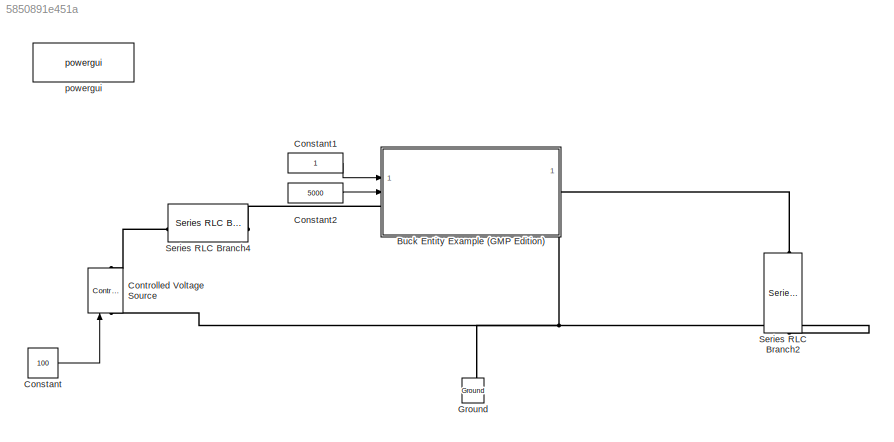
MODEL slx_5850891e451a
KIND model
CONFIG AbsTol = auto
CONFIG EnableMultiTasking = off
CONFIG FixedStep = Ts
CONFIG InitFcn = buck_init
CONFIG MaxStep = auto
CONFIG MinStep = auto
CONFIG RelTol = 1e-3
CONFIG SampleTimeConstraint = Unconstrained
CONFIG SolverName = ode4
CONFIG StartTime = 0.0
CONFIG StopTime = 0.005
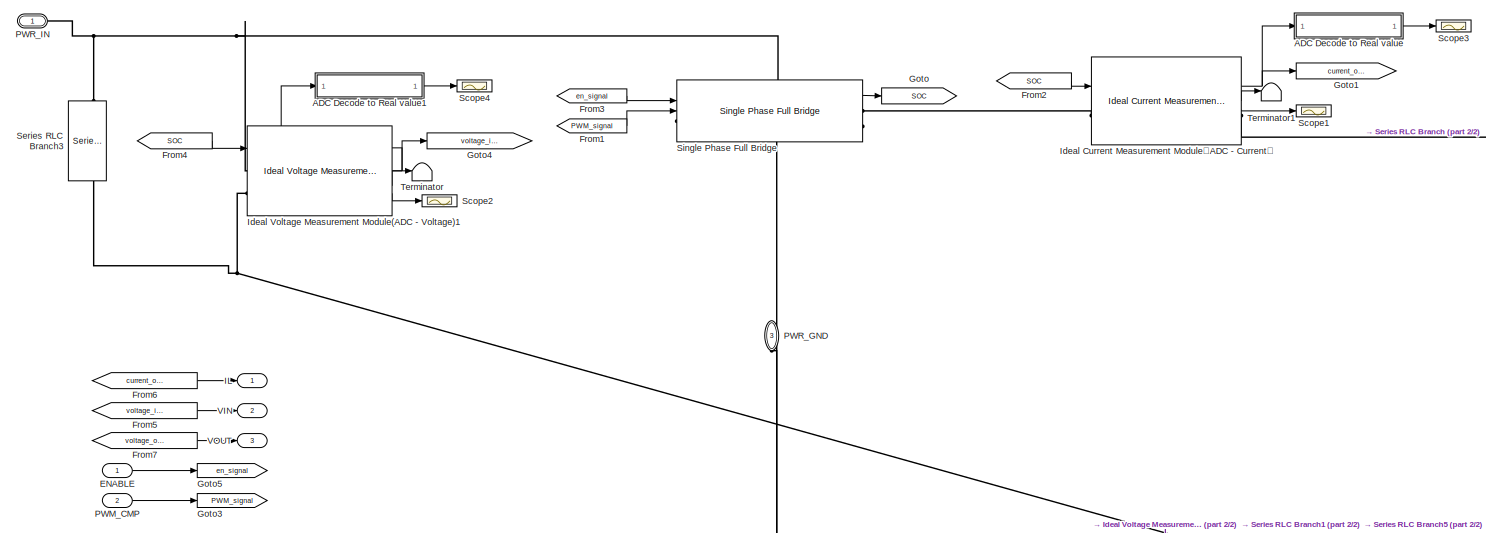
[diagram: Buck Entity Example (GMP Edition) - part 1/2, top left region]
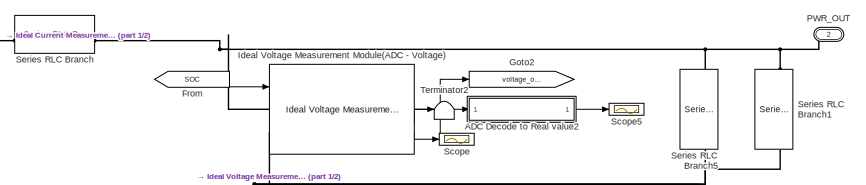
[diagram: Buck Entity Example (GMP Edition) - part 2/2, top right region]
BLOCK [SubSystem] Buck Entity Example (GMP Edition)
  PortSchema = {"entries":[{"content":{"sides":[{"content":{"connectorIds":["In1","In2","LConn1"]},"type":"ConnectorPlacement.EquallySpacedRectSide","uuid":"3dc1f0aa-256b-4eee-9ab4-ff52cb056450"},{"content":{"connectorIds":["Out1","Out2","Out3","RConn1"],"side":"RIGHT"},"type":"ConnectorPlacement.EquallySpacedRectSide","uuid":"c182f68c-961e-48e9-b450-8a2d07cca989"},{"content":{"connectorIds":[],"side":"TOP"},"ty...<+430ch>
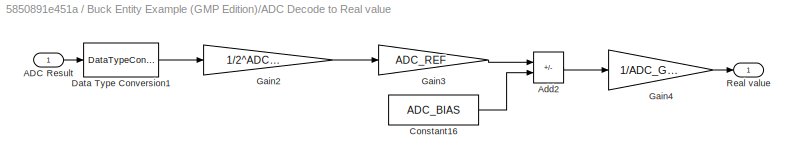
BLOCK [SubSystem] Buck Entity Example (GMP Edition)/ADC Decode to Real value
  CopyFcn = set_param(gcbh,'LinkStatus','none');
BLOCK [Inport] Buck Entity Example (GMP Edition)/ADC Decode to Real value/ADC Result
BLOCK [Sum] Buck Entity Example (GMP Edition)/ADC Decode to Real value/Add2
  IconShape = rectangular
  Inputs = +-
BLOCK [Constant] Buck Entity Example (GMP Edition)/ADC Decode to Real value/Constant16
  Value = ADC_BIAS
BLOCK [DataTypeConversion] Buck Entity Example (GMP Edition)/ADC Decode to Real value/Data Type Conversion1
  OutDataTypeStr = double
  RndMeth = Floor
  SaturateOnIntegerOverflow = off
BLOCK [Gain] Buck Entity Example (GMP Edition)/ADC Decode to Real value/Gain2
  Gain = 1/2^ADC_BIT
BLOCK [Gain] Buck Entity Example (GMP Edition)/ADC Decode to Real value/Gain3
  Gain = ADC_REF
BLOCK [Gain] Buck Entity Example (GMP Edition)/ADC Decode to Real value/Gain4
  Gain = 1/ADC_GAIN
BLOCK [Outport] Buck Entity Example (GMP Edition)/ADC Decode to Real value/Real value
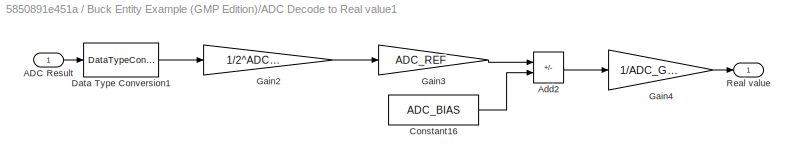
BLOCK [SubSystem] Buck Entity Example (GMP Edition)/ADC Decode to Real value1
  CopyFcn = set_param(gcbh,'LinkStatus','none');
BLOCK [Inport] Buck Entity Example (GMP Edition)/ADC Decode to Real value1/ADC Result
BLOCK [Sum] Buck Entity Example (GMP Edition)/ADC Decode to Real value1/Add2
  IconShape = rectangular
  Inputs = +-
BLOCK [Constant] Buck Entity Example (GMP Edition)/ADC Decode to Real value1/Constant16
  Value = ADC_BIAS
BLOCK [DataTypeConversion] Buck Entity Example (GMP Edition)/ADC Decode to Real value1/Data Type Conversion1
  OutDataTypeStr = double
  RndMeth = Floor
  SaturateOnIntegerOverflow = off
BLOCK [Gain] Buck Entity Example (GMP Edition)/ADC Decode to Real value1/Gain2
  Gain = 1/2^ADC_BIT
BLOCK [Gain] Buck Entity Example (GMP Edition)/ADC Decode to Real value1/Gain3
  Gain = ADC_REF
BLOCK [Gain] Buck Entity Example (GMP Edition)/ADC Decode to Real value1/Gain4
  Gain = 1/ADC_GAIN
BLOCK [Outport] Buck Entity Example (GMP Edition)/ADC Decode to Real value1/Real value
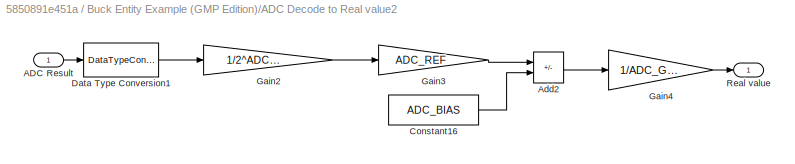
BLOCK [SubSystem] Buck Entity Example (GMP Edition)/ADC Decode to Real value2
  CopyFcn = set_param(gcbh,'LinkStatus','none');
BLOCK [Inport] Buck Entity Example (GMP Edition)/ADC Decode to Real value2/ADC Result
BLOCK [Sum] Buck Entity Example (GMP Edition)/ADC Decode to Real value2/Add2
  IconShape = rectangular
  Inputs = +-
BLOCK [Constant] Buck Entity Example (GMP Edition)/ADC Decode to Real value2/Constant16
  Value = ADC_BIAS
BLOCK [DataTypeConversion] Buck Entity Example (GMP Edition)/ADC Decode to Real value2/Data Type Conversion1
  OutDataTypeStr = double
  RndMeth = Floor
  SaturateOnIntegerOverflow = off
BLOCK [Gain] Buck Entity Example (GMP Edition)/ADC Decode to Real value2/Gain2
  Gain = 1/2^ADC_BIT
BLOCK [Gain] Buck Entity Example (GMP Edition)/ADC Decode to Real value2/Gain3
  Gain = ADC_REF
BLOCK [Gain] Buck Entity Example (GMP Edition)/ADC Decode to Real value2/Gain4
  Gain = 1/ADC_GAIN
BLOCK [Outport] Buck Entity Example (GMP Edition)/ADC Decode to Real value2/Real value
BLOCK [Inport] Buck Entity Example (GMP Edition)/ENABLE
BLOCK [From] Buck Entity Example (GMP Edition)/From
  GotoTag = SOC
BLOCK [From] Buck Entity Example (GMP Edition)/From1
  GotoTag = PWM_signal
BLOCK [From] Buck Entity Example (GMP Edition)/From2
  GotoTag = SOC
BLOCK [From] Buck Entity Example (GMP Edition)/From3
  GotoTag = en_signal
BLOCK [From] Buck Entity Example (GMP Edition)/From4
  GotoTag = SOC
BLOCK [From] Buck Entity Example (GMP Edition)/From5
  GotoTag = voltage_input
BLOCK [From] Buck Entity Example (GMP Edition)/From6
  GotoTag = current_output
BLOCK [From] Buck Entity Example (GMP Edition)/From7
  GotoTag = voltage_output
BLOCK [Goto] Buck Entity Example (GMP Edition)/Goto
  GotoTag = SOC
BLOCK [Goto] Buck Entity Example (GMP Edition)/Goto1
  GotoTag = current_output
BLOCK [Goto] Buck Entity Example (GMP Edition)/Goto2
  GotoTag = voltage_output
BLOCK [Goto] Buck Entity Example (GMP Edition)/Goto3
  GotoTag = PWM_signal
BLOCK [Goto] Buck Entity Example (GMP Edition)/Goto4
  GotoTag = voltage_input
BLOCK [Goto] Buck Entity Example (GMP Edition)/Goto5
  GotoTag = en_signal
BLOCK [Outport] Buck Entity Example (GMP Edition)/IL
BLOCK [Reference] Buck Entity Example (GMP Edition)/Ideal Current Measurement Module（ADC - Current）  REF=peripheral_utilities/Ideal Current Measurement Module（ADC - Current）
  SourceBlock = peripheral_utilities/Ideal Current Measurement Module（ADC - Current）
  SourceProductName = GMP Utilities Library
BLOCK [Reference] Buck Entity Example (GMP Edition)/Ideal Voltage Measurement Module(ADC - Voltage)  REF=peripheral_utilities/Ideal Voltage Measurement Module(ADC - Voltage)
  SourceBlock = peripheral_utilities/Ideal Voltage Measurement Module(ADC - Voltage)
  SourceProductName = GMP Utilities Library
BLOCK [Reference] Buck Entity Example (GMP Edition)/Ideal Voltage Measurement Module(ADC - Voltage)1  REF=peripheral_utilities/Ideal Voltage Measurement Module(ADC - Voltage)
  SourceBlock = peripheral_utilities/Ideal Voltage Measurement Module(ADC - Voltage)
  SourceProductName = GMP Utilities Library
BLOCK [Inport] Buck Entity Example (GMP Edition)/PWM_CMP
  Port = 2
BLOCK [PMIOPort] Buck Entity Example (GMP Edition)/PWR_GND
  NameLocation = right
  Port = 3
  Side = Right
BLOCK [PMIOPort] Buck Entity Example (GMP Edition)/PWR_IN
  Side = Left
BLOCK [PMIOPort] Buck Entity Example (GMP Edition)/PWR_OUT
  NameLocation = top
  Port = 2
  Side = Right
BLOCK [Scope] Buck Entity Example (GMP Edition)/Scope
  Floating = off
  NumInputPorts = 1
  ScopeSpecificationString = Simulink.scopes.TimeScopeBlockCfg('CurrentConfiguration', extmgr.ConfigurationSet(extmgr.Configuration('Core','General UI',true),extmgr.Configuration('Core','Source UI',true),extmgr.Configuration('Sources','WiredSimulink',true),extmgr.Configuration('Visuals','Time Domain',true,'SerializedDisplays',{struct('MinYLimReal','-11.14363','MaxYLimReal','100.29271','YLabelReal','','MinYLimMag','0.00000','M...<+1463ch>
BLOCK [Scope] Buck Entity Example (GMP Edition)/Scope1
  Floating = off
  NumInputPorts = 1
  ScopeSpecificationString = Simulink.scopes.TimeScopeBlockCfg('CurrentConfiguration', extmgr.ConfigurationSet(extmgr.Configuration('Core','General UI',true),extmgr.Configuration('Core','Source UI',true),extmgr.Configuration('Sources','WiredSimulink',true,'DataLoggingVariableName','ScopeData1'),extmgr.Configuration('Visuals','Time Domain',true,'SerializedDisplays',{struct('MinYLimReal','-71.77857','MaxYLimReal','112.69634','Y...<+1474ch>
BLOCK [Scope] Buck Entity Example (GMP Edition)/Scope2
  Floating = off
  NumInputPorts = 1
  ScopeSpecificationString = Simulink.scopes.TimeScopeBlockCfg('CurrentConfiguration', extmgr.ConfigurationSet(extmgr.Configuration('Core','General UI',true),extmgr.Configuration('Core','Source UI',true),extmgr.Configuration('Sources','WiredSimulink',true,'DataLoggingVariableName','ScopeData2'),extmgr.Configuration('Visuals','Time Domain',true,'SerializedDisplays',{struct('MinYLimReal','-20.25043','MaxYLimReal','182.2539','YL...<+1500ch>
BLOCK [Scope] Buck Entity Example (GMP Edition)/Scope3
  Floating = off
  NumInputPorts = 1
  ScopeSpecificationString = Simulink.scopes.TimeScopeBlockCfg('CurrentConfiguration', extmgr.ConfigurationSet(extmgr.Configuration('Core','General UI',true),extmgr.Configuration('Core','Source UI',true),extmgr.Configuration('Sources','WiredSimulink',true,'DataLoggingVariableName','ScopeData3'),extmgr.Configuration('Visuals','Time Domain',true,'SerializedDisplays',{struct('MinYLimReal','-37.5','MaxYLimReal','37.5','YLabelReal...<+1395ch>
BLOCK [Scope] Buck Entity Example (GMP Edition)/Scope4
  Floating = off
  NumInputPorts = 1
  ScopeSpecificationString = Simulink.scopes.TimeScopeBlockCfg('CurrentConfiguration', extmgr.ConfigurationSet(extmgr.Configuration('Core','General UI',true),extmgr.Configuration('Core','Source UI',true),extmgr.Configuration('Sources','WiredSimulink',true,'DataLoggingVariableName','ScopeData4'),extmgr.Configuration('Visuals','Time Domain',true,'SerializedDisplays',{struct('MinYLimReal','-15.00000','MaxYLimReal','135.00000','Y...<+1394ch>
BLOCK [Scope] Buck Entity Example (GMP Edition)/Scope5
  Floating = off
  NumInputPorts = 1
  ScopeSpecificationString = Simulink.scopes.TimeScopeBlockCfg('CurrentConfiguration', extmgr.ConfigurationSet(extmgr.Configuration('Core','General UI',true),extmgr.Configuration('Core','Source UI',true),extmgr.Configuration('Sources','WiredSimulink',true,'DataLoggingVariableName','ScopeData5'),extmgr.Configuration('Visuals','Time Domain',true,'SerializedDisplays',{struct('MinYLimReal','-11.11702','MaxYLimReal','100.05318','Y...<+1394ch>
BLOCK [Reference] Buck Entity Example (GMP Edition)/Series RLC Branch  REF=spsSeriesRLCBranchLib/Series RLC Branch
  LibrarySourceBlock = sps_lib/Passives/Series RLC Branch
  SourceBlock = spsSeriesRLCBranchLib/Series RLC Branch
  SourceType = Series RLC Branch
BLOCK [Reference] Buck Entity Example (GMP Edition)/Series RLC Branch1  REF=spsSeriesRLCBranchLib/Series RLC Branch
  LibrarySourceBlock = sps_lib/Passives/Series RLC Branch
  NameLocation = left
  SourceBlock = spsSeriesRLCBranchLib/Series RLC Branch
  SourceType = Series RLC Branch
BLOCK [Reference] Buck Entity Example (GMP Edition)/Series RLC Branch3  REF=spsSeriesRLCBranchLib/Series RLC Branch
  LibrarySourceBlock = sps_lib/Passives/Series RLC Branch
  NameLocation = left
  SourceBlock = spsSeriesRLCBranchLib/Series RLC Branch
  SourceType = Series RLC Branch
BLOCK [Reference] Buck Entity Example (GMP Edition)/Series RLC Branch5  REF=spsSeriesRLCBranchLib/Series RLC Branch
  LibrarySourceBlock = sps_lib/Passives/Series RLC Branch
  NameLocation = left
  SourceBlock = spsSeriesRLCBranchLib/Series RLC Branch
  SourceType = Series RLC Branch
BLOCK [Reference] Buck Entity Example (GMP Edition)/Single Phase Full Bridge  REF=peripheral_utilities/Single Phase Full Bridge
  SourceBlock = peripheral_utilities/Single Phase Full Bridge
  SourceProductName = GMP Utilities Library
BLOCK [Terminator] Buck Entity Example (GMP Edition)/Terminator
BLOCK [Terminator] Buck Entity Example (GMP Edition)/Terminator1
BLOCK [Terminator] Buck Entity Example (GMP Edition)/Terminator2
BLOCK [Outport] Buck Entity Example (GMP Edition)/VIN
  Port = 2
BLOCK [Outport] Buck Entity Example (GMP Edition)/VOUT
  Port = 3
BLOCK [Constant] Constant
  Value = 100
BLOCK [Constant] Constant1
BLOCK [Constant] Constant2
  Value = 5000
BLOCK [Reference] Controlled Voltage Source  REF=spsControlledVoltageSourceLib/Controlled Voltage Source
  LibrarySourceBlock = sps_lib/Sources/Controlled Voltage Source
  SourceBlock = spsControlledVoltageSourceLib/Controlled Voltage Source
  SourceType = Controlled Voltage Source
BLOCK [Reference] Ground  REF=spsGroundLib/Ground
  LibrarySourceBlock = sps_lib/Utilities/Ground
  NameLocation = right
  SourceBlock = spsGroundLib/Ground
  SourceType = Ground
BLOCK [Reference] Series RLC Branch2  REF=spsSeriesRLCBranchLib/Series RLC Branch
  LibrarySourceBlock = sps_lib/Passives/Series RLC Branch
  NameLocation = left
  SourceBlock = spsSeriesRLCBranchLib/Series RLC Branch
  SourceType = Series RLC Branch
BLOCK [Reference] Series RLC Branch4  REF=spsSeriesRLCBranchLib/Series RLC Branch
  LibrarySourceBlock = sps_lib/Passives/Series RLC Branch
  SourceBlock = spsSeriesRLCBranchLib/Series RLC Branch
  SourceType = Series RLC Branch
BLOCK [Reference] powergui  REF=spspowerguiLib/powergui
  LibrarySourceBlock = sps_lib/powergui
  Priority = 1
  SourceBlock = spspowerguiLib/powergui
  SourceType = PSB option menu block
LINE Buck Entity Example (GMP Edition)/ADC Decode to Real value/ADC Result:1 -> Buck Entity Example (GMP Edition)/ADC Decode to Real value/Data Type Conversion1:1
LINE Buck Entity Example (GMP Edition)/ADC Decode to Real value/Add2:1 -> Buck Entity Example (GMP Edition)/ADC Decode to Real value/Gain4:1
LINE Buck Entity Example (GMP Edition)/ADC Decode to Real value/Constant16:1 -> Buck Entity Example (GMP Edition)/ADC Decode to Real value/Add2:2
LINE Buck Entity Example (GMP Edition)/ADC Decode to Real value/Data Type Conversion1:1 -> Buck Entity Example (GMP Edition)/ADC Decode to Real value/Gain2:1
LINE Buck Entity Example (GMP Edition)/ADC Decode to Real value/Gain2:1 -> Buck Entity Example (GMP Edition)/ADC Decode to Real value/Gain3:1
LINE Buck Entity Example (GMP Edition)/ADC Decode to Real value/Gain3:1 -> Buck Entity Example (GMP Edition)/ADC Decode to Real value/Add2:1
LINE Buck Entity Example (GMP Edition)/ADC Decode to Real value/Gain4:1 -> Buck Entity Example (GMP Edition)/ADC Decode to Real value/Real value:1
LINE Buck Entity Example (GMP Edition)/ADC Decode to Real value1/ADC Result:1 -> Buck Entity Example (GMP Edition)/ADC Decode to Real value1/Data Type Conversion1:1
LINE Buck Entity Example (GMP Edition)/ADC Decode to Real value1/Add2:1 -> Buck Entity Example (GMP Edition)/ADC Decode to Real value1/Gain4:1
LINE Buck Entity Example (GMP Edition)/ADC Decode to Real value1/Constant16:1 -> Buck Entity Example (GMP Edition)/ADC Decode to Real value1/Add2:2
LINE Buck Entity Example (GMP Edition)/ADC Decode to Real value1/Data Type Conversion1:1 -> Buck Entity Example (GMP Edition)/ADC Decode to Real value1/Gain2:1
LINE Buck Entity Example (GMP Edition)/ADC Decode to Real value1/Gain2:1 -> Buck Entity Example (GMP Edition)/ADC Decode to Real value1/Gain3:1
LINE Buck Entity Example (GMP Edition)/ADC Decode to Real value1/Gain3:1 -> Buck Entity Example (GMP Edition)/ADC Decode to Real value1/Add2:1
LINE Buck Entity Example (GMP Edition)/ADC Decode to Real value1/Gain4:1 -> Buck Entity Example (GMP Edition)/ADC Decode to Real value1/Real value:1
LINE Buck Entity Example (GMP Edition)/ADC Decode to Real value1:1 -> Buck Entity Example (GMP Edition)/Scope4:1
LINE Buck Entity Example (GMP Edition)/ADC Decode to Real value2/ADC Result:1 -> Buck Entity Example (GMP Edition)/ADC Decode to Real value2/Data Type Conversion1:1
LINE Buck Entity Example (GMP Edition)/ADC Decode to Real value2/Add2:1 -> Buck Entity Example (GMP Edition)/ADC Decode to Real value2/Gain4:1
LINE Buck Entity Example (GMP Edition)/ADC Decode to Real value2/Constant16:1 -> Buck Entity Example (GMP Edition)/ADC Decode to Real value2/Add2:2
LINE Buck Entity Example (GMP Edition)/ADC Decode to Real value2/Data Type Conversion1:1 -> Buck Entity Example (GMP Edition)/ADC Decode to Real value2/Gain2:1
LINE Buck Entity Example (GMP Edition)/ADC Decode to Real value2/Gain2:1 -> Buck Entity Example (GMP Edition)/ADC Decode to Real value2/Gain3:1
LINE Buck Entity Example (GMP Edition)/ADC Decode to Real value2/Gain3:1 -> Buck Entity Example (GMP Edition)/ADC Decode to Real value2/Add2:1
LINE Buck Entity Example (GMP Edition)/ADC Decode to Real value2/Gain4:1 -> Buck Entity Example (GMP Edition)/ADC Decode to Real value2/Real value:1
LINE Buck Entity Example (GMP Edition)/ADC Decode to Real value2:1 -> Buck Entity Example (GMP Edition)/Scope5:1
LINE Buck Entity Example (GMP Edition)/ADC Decode to Real value:1 -> Buck Entity Example (GMP Edition)/Scope3:1
LINE Buck Entity Example (GMP Edition)/ENABLE:1 -> Buck Entity Example (GMP Edition)/Goto5:1
LINE Buck Entity Example (GMP Edition)/From1:1 -> Buck Entity Example (GMP Edition)/Single Phase Full Bridge:2
LINE Buck Entity Example (GMP Edition)/From2:1 -> Buck Entity Example (GMP Edition)/Ideal Current Measurement Module（ADC - Current）:1
LINE Buck Entity Example (GMP Edition)/From3:1 -> Buck Entity Example (GMP Edition)/Single Phase Full Bridge:1
LINE Buck Entity Example (GMP Edition)/From4:1 -> Buck Entity Example (GMP Edition)/Ideal Voltage Measurement Module(ADC - Voltage)1:1
LINE Buck Entity Example (GMP Edition)/From5:1 -> Buck Entity Example (GMP Edition)/VIN:1
LINE Buck Entity Example (GMP Edition)/From6:1 -> Buck Entity Example (GMP Edition)/IL:1
LINE Buck Entity Example (GMP Edition)/From7:1 -> Buck Entity Example (GMP Edition)/VOUT:1
LINE Buck Entity Example (GMP Edition)/From:1 -> Buck Entity Example (GMP Edition)/Ideal Voltage Measurement Module(ADC - Voltage):1
NET Buck Entity Example (GMP Edition)/Ideal Current Measurement Module（ADC - Current）:1 -> Buck Entity Example (GMP Edition)/ADC Decode to Real value:1, Buck Entity Example (GMP Edition)/Goto1:1
LINE Buck Entity Example (GMP Edition)/Ideal Current Measurement Module（ADC - Current）:2 -> Buck Entity Example (GMP Edition)/Terminator1:1
LINE Buck Entity Example (GMP Edition)/Ideal Current Measurement Module（ADC - Current）:3 -> Buck Entity Example (GMP Edition)/Scope1:1
NET Buck Entity Example (GMP Edition)/Ideal Voltage Measurement Module(ADC - Voltage)1:1 -> Buck Entity Example (GMP Edition)/ADC Decode to Real value1:1, Buck Entity Example (GMP Edition)/Goto4:1
LINE Buck Entity Example (GMP Edition)/Ideal Voltage Measurement Module(ADC - Voltage)1:2 -> Buck Entity Example (GMP Edition)/Terminator:1
LINE Buck Entity Example (GMP Edition)/Ideal Voltage Measurement Module(ADC - Voltage)1:3 -> Buck Entity Example (GMP Edition)/Scope2:1
NET Buck Entity Example (GMP Edition)/Ideal Voltage Measurement Module(ADC - Voltage):1 -> Buck Entity Example (GMP Edition)/ADC Decode to Real value2:1, Buck Entity Example (GMP Edition)/Goto2:1
LINE Buck Entity Example (GMP Edition)/Ideal Voltage Measurement Module(ADC - Voltage):2 -> Buck Entity Example (GMP Edition)/Terminator2:1
LINE Buck Entity Example (GMP Edition)/Ideal Voltage Measurement Module(ADC - Voltage):3 -> Buck Entity Example (GMP Edition)/Scope:1
LINE Buck Entity Example (GMP Edition)/PWM_CMP:1 -> Buck Entity Example (GMP Edition)/Goto3:1
LINE Buck Entity Example (GMP Edition)/Single Phase Full Bridge:1 -> Buck Entity Example (GMP Edition)/Goto:1
LINE Constant1:1 -> Buck Entity Example (GMP Edition):1
LINE Constant2:1 -> Buck Entity Example (GMP Edition):2
LINE Constant:1 -> Controlled Voltage Source:1
PLINE Buck Entity Example (GMP Edition)/Ideal Current Measurement Module（ADC - Current）:LConn1 -- Buck Entity Example (GMP Edition)/Single Phase Full Bridge:RConn1
PLINE Buck Entity Example (GMP Edition)/Ideal Current Measurement Module（ADC - Current）:RConn1 -- Buck Entity Example (GMP Edition)/Series RLC Branch:LConn1
PNET net1: Buck Entity Example (GMP Edition)/Ideal Voltage Measurement Module(ADC - Voltage)1:LConn1 -- Buck Entity Example (GMP Edition)/PWR_IN:RConn1 -- Buck Entity Example (GMP Edition)/Series RLC Branch3:LConn1 -- Buck Entity Example (GMP Edition)/Single Phase Full Bridge:LConn1
PNET net2: Buck Entity Example (GMP Edition)/Ideal Voltage Measurement Module(ADC - Voltage)1:LConn2 -- Buck Entity Example (GMP Edition)/Ideal Voltage Measurement Module(ADC - Voltage):LConn2 -- Buck Entity Example (GMP Edition)/PWR_GND:RConn1 -- Buck Entity Example (GMP Edition)/Series RLC Branch1:RConn1 -- Buck Entity Example (GMP Edition)/Series RLC Branch3:RConn1 -- Buck Entity Example (GMP Edition)/Series RLC Branch5:RConn1 -- Buck Entity Example (GMP Edition)/Single Phase Full Bridge:RConn2
PNET net3: Buck Entity Example (GMP Edition)/Ideal Voltage Measurement Module(ADC - Voltage):LConn1 -- Buck Entity Example (GMP Edition)/PWR_OUT:RConn1 -- Buck Entity Example (GMP Edition)/Series RLC Branch1:LConn1 -- Buck Entity Example (GMP Edition)/Series RLC Branch5:LConn1 -- Buck Entity Example (GMP Edition)/Series RLC Branch:RConn1
PLINE Buck Entity Example (GMP Edition):LConn1 -- Series RLC Branch4:RConn1
PLINE Buck Entity Example (GMP Edition):RConn1 -- Series RLC Branch2:LConn1
PNET net4: Buck Entity Example (GMP Edition):RConn2 -- Controlled Voltage Source:LConn1 -- Ground:LConn1 -- Series RLC Branch2:RConn1
PLINE Controlled Voltage Source:RConn1 -- Series RLC Branch4:LConn1
note: NET lines group one-source signal fan-out (src -> all destinations, sorted); 1:1 wires keep LINE; PNET lines group multi-terminal physical nets as a canonical sorted terminal list (undirected conserving connections); 2-terminal nets keep the pairwise PLINE form
